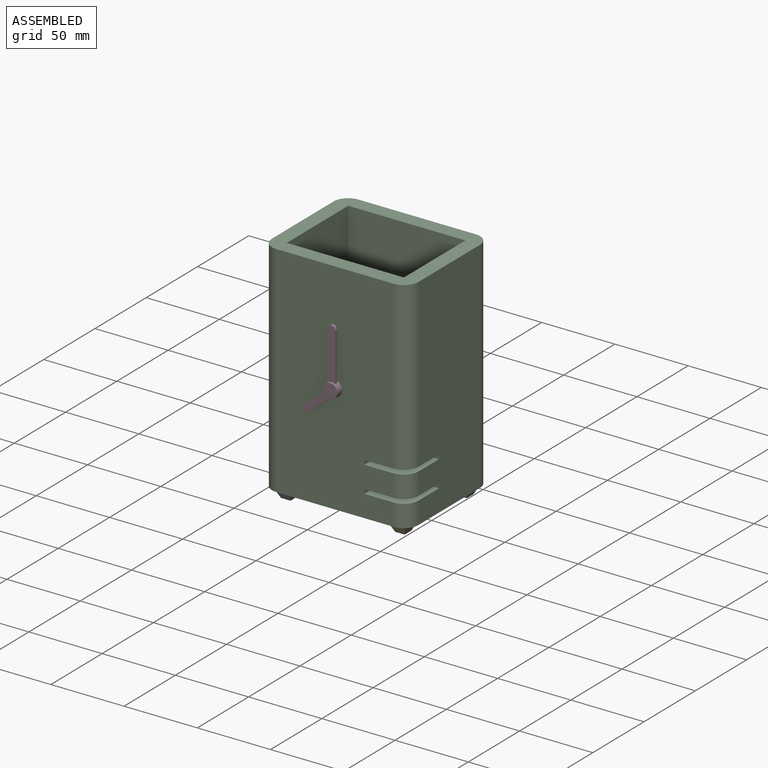
[diagram: assembled view]
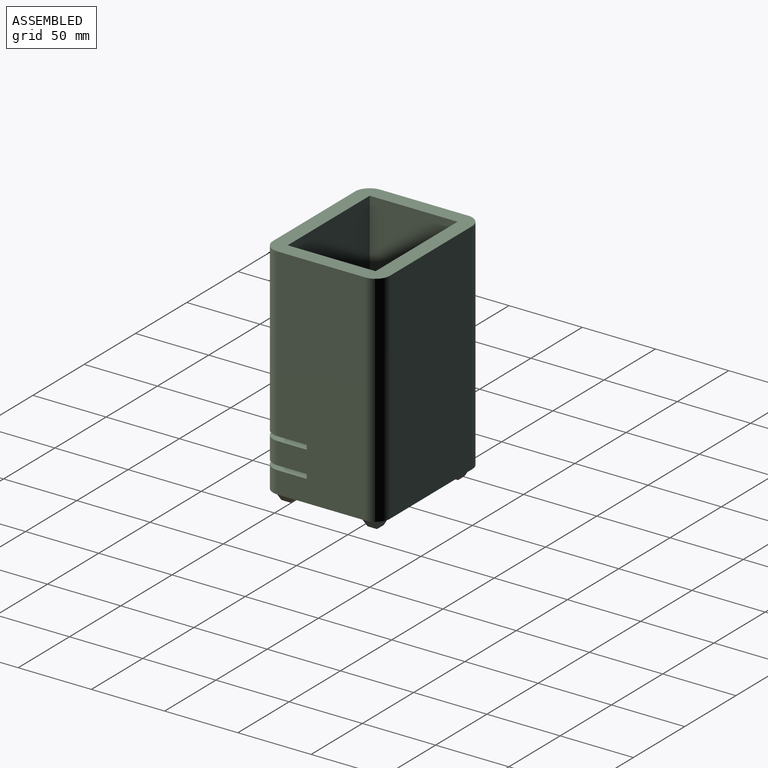
[diagram: assembled view, second angle]
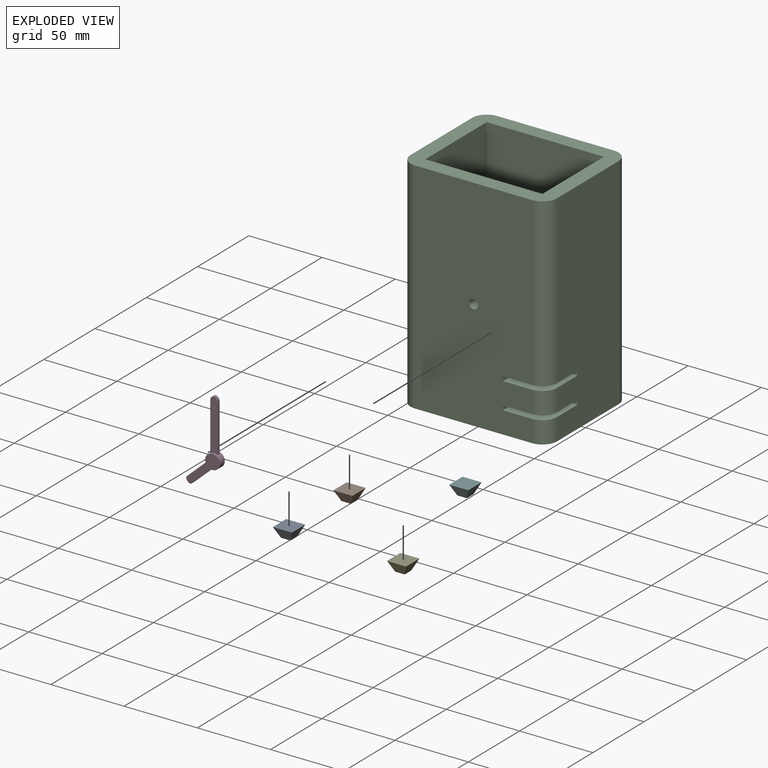
[diagram: exploded view]
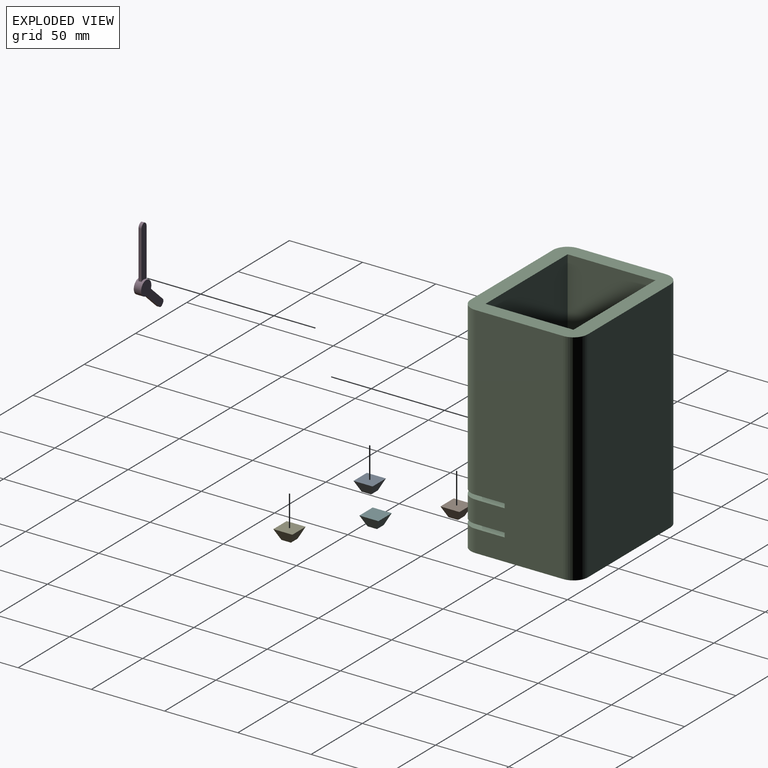
[diagram: exploded view, second angle]
ASSEMBLY  parts=6 mates=5
PART A: 6 faces, bbox 13x13x7 mm
  f0: plane 6.47x6.47mm, normal (0,0,1), area 41.9mm2, adj f2,f3,f4,f5
  f1: plane 13x13mm, normal (0,0,-1), area 169mm2, adj f2,f3,f4,f5
  f2: plane 13x7mm, normal (0,-0.91,0.42), area 75.2mm2, adj f0,f1,f3,f4
  f3: plane 13x7mm, normal (0.91,0,0.42), area 75.2mm2, adj f0,f1,f2,f5
  f4: plane 13x7mm, normal (-0.91,0,0.42), area 75.2mm2, adj f0,f1,f2,f5
  f5: plane 13x7mm, normal (0,0.91,0.42), area 75.2mm2, adj f0,f1,f3,f4
PART B: same geometry as A
PART C: 26 faces, bbox 100x80x150 mm
  f0: plane 140x80mm, normal (0,1,0), area 11051.7mm2, adj f1,f7,f10,f16,f17,f19,f20,f21
  f1: plane 140x60mm, normal (-1,0,0), area 8280mm2, adj f0,f6,f10,f16,f18,f19,f21,f22
  f2: plane 150x60mm, normal (1,0,0), area 8880mm2, adj f4,f5,f10,f11,f12,f15,f18,f19
  f3: plane 150x80mm, normal (0,-1,0), area 11851.7mm2, adj f4,f5,f10,f11,f14,f15,f17,f19
  f4: cylinder r=10mm len=15mm, axis (0,0,-1), area 235.6mm2, adj f2,f3,f21,f23
  f5: cylinder r=10mm len=114mm, axis (0,0,-1), area 1790.7mm2, adj f2,f3,f10,f19
  f6: plane 140x80mm, normal (0,-1,0), area 11200mm2, adj f1,f7,f10,f16
  f7: plane 140x60mm, normal (1,0,0), area 8400mm2, adj f0,f6,f10,f16
  f8: plane 150x80mm, normal (0,1,0), area 12000mm2, adj f10,f11,f12,f13
  f9: plane 150x60mm, normal (-1,0,0), area 9000mm2, adj f10,f11,f13,f14
  f10: plane 100x80mm, normal (0,0,1), area 3114.2mm2, adj f0,f1,f2,f3,f5,f6,f7,f8
  f11: plane 100x80mm, normal (0,0,-1), area 7914.2mm2, adj f2,f3,f8,f9,f12,f13,f14,f15
  f12: cylinder r=10mm len=150mm, axis (0,0,1), area 2356.2mm2, adj f2,f8,f10,f11
  f13: cylinder r=10mm len=150mm, axis (0,0,-1), area 2356.2mm2, adj f8,f9,f10,f11
  f14: cylinder r=10mm len=150mm, axis (0,0,1), area 2356.2mm2, adj f3,f9,f10,f11
  f15: cylinder r=10mm len=15mm, axis (0,0,-1), area 235.6mm2, adj f2,f3,f11,f25
  f16: plane 80x60mm, normal (0,0,1), area 4800mm2, adj f0,f1,f6,f7
  f17: cylinder r=3mm len=10mm, axis (0,-1,0), area 188.5mm2, adj f0,f3
  f18: plane 10x3mm, normal (0,-1,0), area 30mm2, adj f1,f2,f19,f21
  f19: plane 30x30mm, normal (0,0,-1), area 478.5mm2, adj f0,f1,f2,f3,f5,f18,f20
  f20: plane 10x3mm, normal (1,0,0), area 30mm2, adj f0,f3,f19,f21
  f21: plane 30x30mm, normal (0,0,1), area 478.5mm2, adj f0,f1,f2,f3,f4,f18,f20
  f22: plane 10x3mm, normal (0,-1,0), area 30mm2, adj f1,f2,f23,f25
  f23: plane 30x30mm, normal (0,0,-1), area 478.5mm2, adj f0,f1,f2,f3,f4,f22,f24
  f24: plane 10x3mm, normal (1,0,0), area 30mm2, adj f0,f3,f23,f25
  f25: plane 30x30mm, normal (0,0,1), area 478.5mm2, adj f0,f1,f2,f3,f15,f22,f24
PART D: 17 faces, bbox 23.9x5x58.2 mm
  f0: cylinder r=5mm len=10mm, axis (0,1,0), area 136.1mm2, adj f1,f2,f3,f4,f5,f6,f9,f10
  f1: plane 10x10mm, normal (0,-1,0), area 78.5mm2, adj f0
  f2: plane 10x10mm, normal (0,1,0), area 78.5mm2, adj f0
  f3: plane 32.67x2mm, normal (1,0,0), area 65.3mm2, adj f0,f5,f6,f7
  f4: plane 32.67x2mm, normal (-1,0,0), area 65.3mm2, adj f0,f5,f6,f8
  f5: plane 35.63x5mm, normal (0,1,0), area 172.2mm2, adj f0,f3,f4,f7,f8
  f6: plane 35.63x5mm, normal (0,-1,0), area 172.2mm2, adj f0,f3,f4,f7,f8
  f7: cylinder r=3mm len=2.96mm, axis (0,-1,0), area 8.4mm2, adj f3,f5,f6,f8
  f8: cylinder r=3mm len=2.96mm, axis (0,1,0), area 8.4mm2, adj f4,f5,f6,f7
  f9: plane 13.89x12.77mm, normal (0.68,0,-0.74), area 37.7mm2, adj f0,f13,f14,f15
  f10: plane 13.49x12.4mm, normal (-0.68,0,0.74), area 36.7mm2, adj f0,f13,f14,f16
  f11: plane 2x0.24mm, normal (-0.81,0,-0.59), area 0.6mm2, adj f12,f13,f14,f15
  f12: plane 2x0.33mm, normal (-0.72,0,-0.69), area 0.9mm2, adj f11,f13,f14,f16
  f13: plane 17.89x16.64mm, normal (0,-1,0), area 98.9mm2, adj f0,f9,f10,f11,f12,f15,f16
  f14: plane 17.89x16.64mm, normal (0,1,0), area 98.9mm2, adj f0,f9,f10,f11,f12,f15,f16
  f15: cylinder r=2mm len=2.96mm, axis (0,1,0), area 6.7mm2, adj f9,f11,f13,f14
  f16: cylinder r=2mm len=2.85mm, axis (0,1,0), area 6.4mm2, adj f10,f12,f13,f14
PART E: same geometry as A
PART F: same geometry as A
PLACE A rot(axis=(0,-1,0),180deg) t=(1.07,-69.26,0)mm
PLACE B rot(axis=(0,1,0),180deg) t=(0.91,-10.04,0)mm
PLACE C t=(40,-40,0)mm
PLACE D t=(40,-82.5,75)mm
PLACE E rot(axis=(0,1,0),180deg) t=(79.13,-69.39,0)mm
PLACE F rot(axis=(0,1,0),180deg) t=(80,-10,0)mm
MATE planar C.f11 <-> A.f1  axis (0,0,-1) through (40,-40,0)mm
MATE planar C.f12 <-> F.f1  axis (0,0,-1) through (80,-10,0)mm
MATE fastened D.f0 <-> C.f17  axis (0,1,0) through (40,-80,75)mm
MATE planar C.f13 <-> B.f1  axis (0,0,-1) through (0,-10,0)mm
MATE planar C.f11 <-> E.f1  axis (0,0,-1) through (40,-40,0)mm
